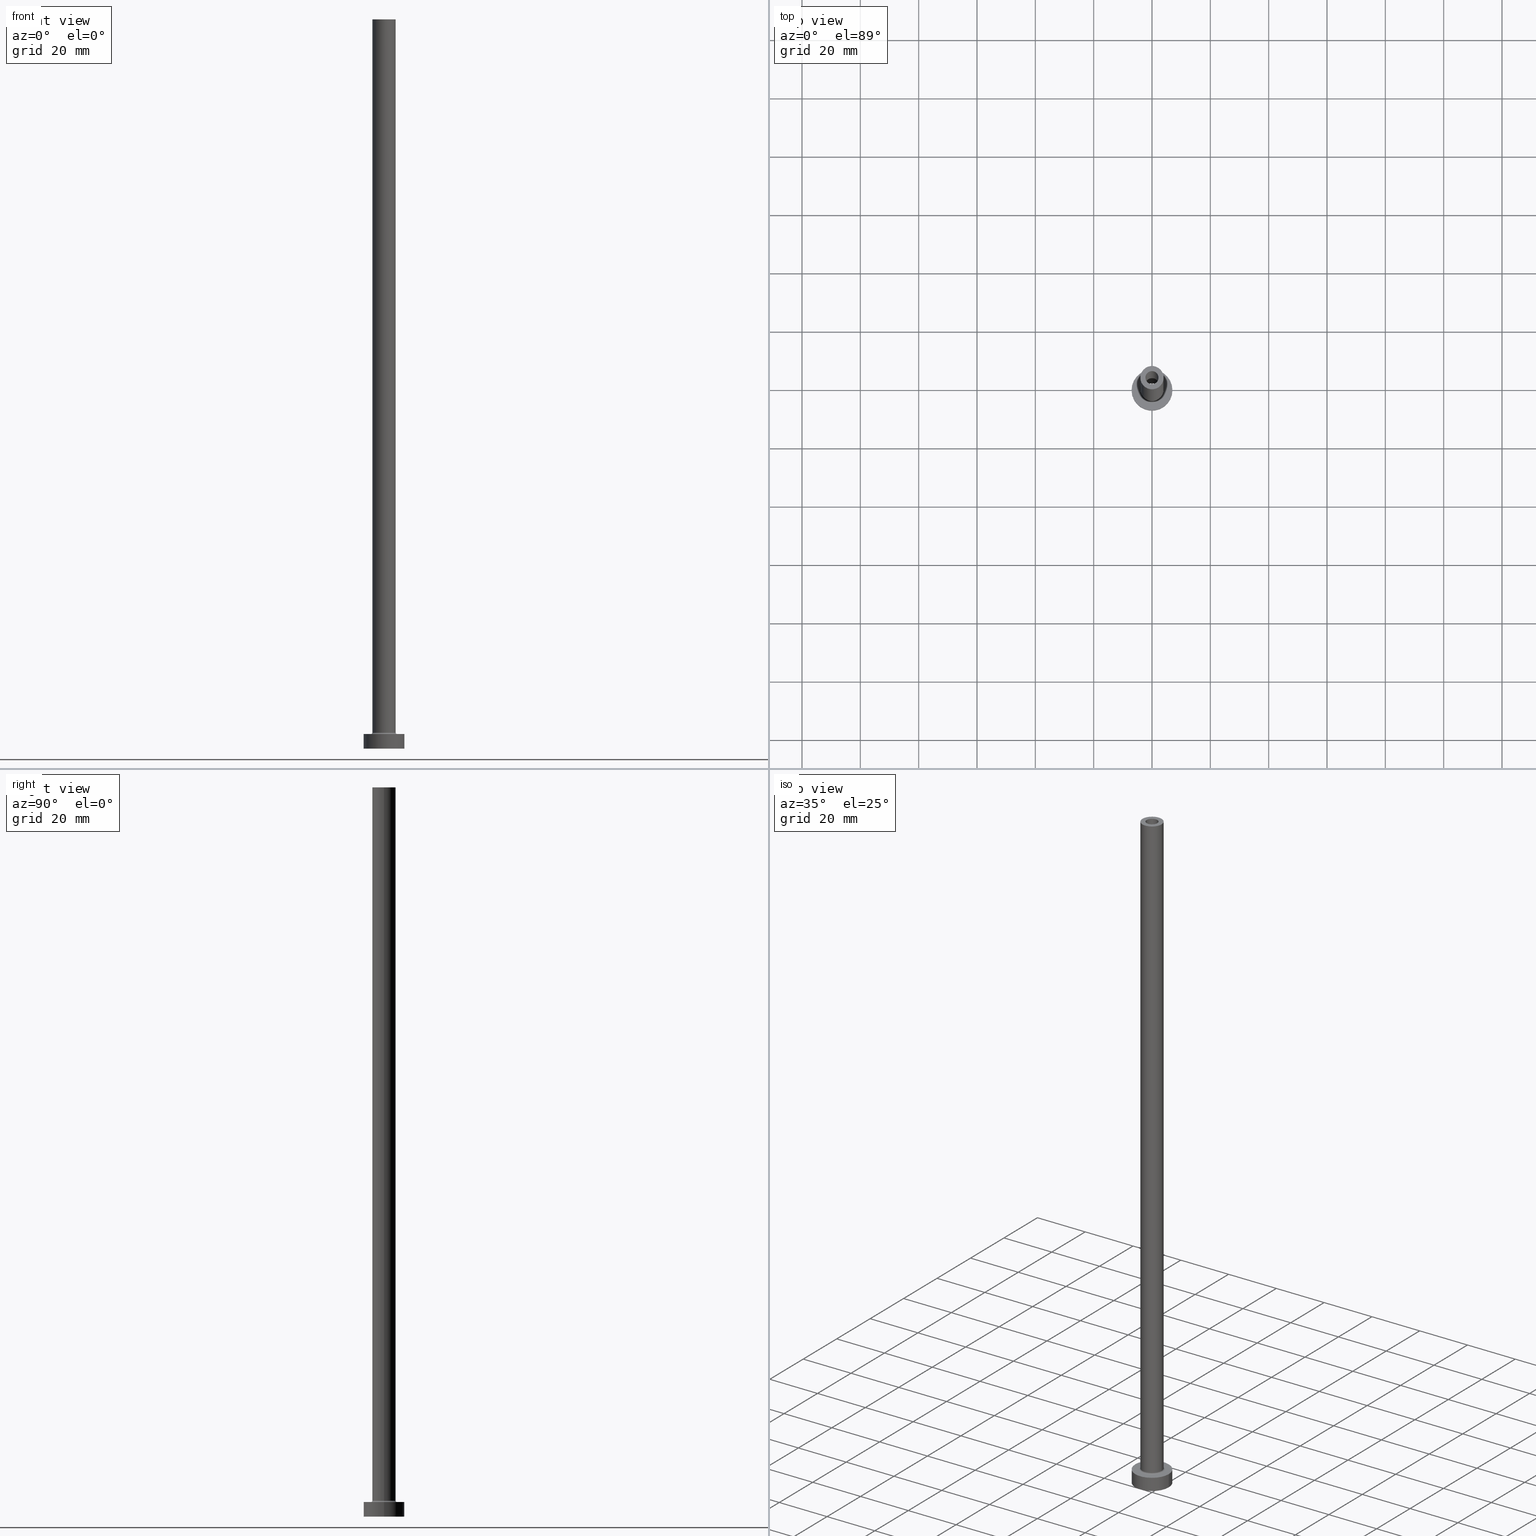
[diagram: canonical four-view strip — front | top / right | iso, engineering-drawing reading convention]
A machine part, canonical four-view strip (front | top / right | iso — engineering-drawing reading convention). The complete STEP part file that produces these views, byte-faithful:
ISO-10303-21;
HEADER;
FILE_DESCRIPTION (( 'STEP AP203' ),
    '1' );
FILE_NAME ('2b3d.STEP',
    '2023-02-13T11:04:28',
    ( '' ),
    ( '' ),
    'SwSTEP 2.0',
    'SolidWorks 2019',
    '' );
FILE_SCHEMA (( 'CONFIG_CONTROL_DESIGN' ));
ENDSEC;

DATA;
#1 = DIRECTION ( 'NONE',  ( 1.000000000000000000, 0.000000000000000000, -0.000000000000000000 ) ) ;
#2 = AXIS2_PLACEMENT_3D ( 'NONE', #378, #49, #346 ) ;
#3 = CARTESIAN_POINT ( 'NONE',  ( 0.000000000000000000, 0.000000000000000000, 250.0000000000000000 ) ) ;
#4 = ADVANCED_FACE ( 'NONE', ( #196, #313 ), #344, .F. ) ;
#5 = APPROVAL_STATUS ( 'not_yet_approved' ) ;
#6 = FACE_BOUND ( 'NONE', #110, .T. ) ;
#7 = ORIENTED_EDGE ( 'NONE', *, *, #81, .T. ) ;
#8 = DIRECTION ( 'NONE',  ( 1.000000000000000000, 0.000000000000000000, 0.000000000000000000 ) ) ;
#9 = AXIS2_PLACEMENT_3D ( 'NONE', #26, #382, #315 ) ;
#10 = CARTESIAN_POINT ( 'NONE',  ( -7.000000000000000000, 0.000000000000000000, 5.000000000000000000 ) ) ;
#11 = CARTESIAN_POINT ( 'NONE',  ( 0.000000000000000000, 0.000000000000000000, 250.0000000000000000 ) ) ;
#12 = DIRECTION ( 'NONE',  ( -1.000000000000000000, 0.000000000000000000, 0.000000000000000000 ) ) ;
#13 = AXIS2_PLACEMENT_3D ( 'NONE', #274, #55, #457 ) ;
#14 = DIRECTION ( 'NONE',  ( 1.000000000000000000, 0.000000000000000000, 0.000000000000000000 ) ) ;
#15 = CARTESIAN_POINT ( 'NONE',  ( 0.000000000000000000, 0.000000000000000000, 5.500000000000005329 ) ) ;
#16 = AXIS2_PLACEMENT_3D ( 'NONE', #191, #230, #340 ) ;
#17 = CARTESIAN_POINT ( 'NONE',  ( 0.000000000000000000, 0.000000000000000000, 0.000000000000000000 ) ) ;
#18 = ORIENTED_EDGE ( 'NONE', *, *, #396, .T. ) ;
#19 = EDGE_CURVE ( 'NONE', #76, #166, #244, .T. ) ;
#20 = DATE_AND_TIME ( #417, #94 ) ;
#21 = ORIENTED_EDGE ( 'NONE', *, *, #50, .F. ) ;
#22 = DIRECTION ( 'NONE',  ( 0.000000000000000000, 0.000000000000000000, -1.000000000000000000 ) ) ;
#23 = CARTESIAN_POINT ( 'NONE',  ( 0.000000000000000000, 0.000000000000000000, 205.0000000000000284 ) ) ;
#24 = CIRCLE ( 'NONE', #288, 4.500000000000000888 ) ;
#25 =( NAMED_UNIT ( * ) PLANE_ANGLE_UNIT ( ) SI_UNIT ( $, .RADIAN. ) );
#26 = CARTESIAN_POINT ( 'NONE',  ( 0.000000000000000000, 0.000000000000000000, 5.500000000000005329 ) ) ;
#27 = DATE_TIME_ROLE ( 'creation_date' ) ;
#28 = DIRECTION ( 'NONE',  ( -1.000000000000000000, 0.000000000000000000, 0.000000000000000000 ) ) ;
#29 = CIRCLE ( 'NONE', #219, 2.399999999999999911 ) ;
#30 = CARTESIAN_POINT ( 'NONE',  ( 0.000000000000000000, 0.000000000000000000, 5.000000000000000000 ) ) ;
#31 = CARTESIAN_POINT ( 'NONE',  ( -2.399999999999999911, 0.000000000000000000, 211.7882250993908713 ) ) ;
#32 = PERSON_AND_ORGANIZATION ( #57, #300 ) ;
#33 = CARTESIAN_POINT ( 'NONE',  ( -4.500000000000000888, 5.510910596163088569E-16, 5.000000000000002665 ) ) ;
#34 = AXIS2_PLACEMENT_3D ( 'NONE', #17, #165, #312 ) ;
#35 = DIRECTION ( 'NONE',  ( -0.000000000000000000, -0.000000000000000000, -1.000000000000000000 ) ) ;
#36 = FACE_OUTER_BOUND ( 'NONE', #175, .T. ) ;
#37 = AXIS2_PLACEMENT_3D ( 'NONE', #287, #364, #69 ) ;
#38 = ORIENTED_EDGE ( 'NONE', *, *, #361, .F. ) ;
#39 = CC_DESIGN_PERSON_AND_ORGANIZATION_ASSIGNMENT ( #32, #144, ( #148 ) ) ;
#40 = DIRECTION ( 'NONE',  ( 0.000000000000000000, 0.000000000000000000, 1.000000000000000000 ) ) ;
#41 = EDGE_LOOP ( 'NONE', ( #83, #78, #412, #188 ) ) ;
#42 = CIRCLE ( 'NONE', #2, 4.000000000000000000 ) ;
#43 = ADVANCED_FACE ( 'NONE', ( #268 ), #93, .F. ) ;
#44 = DIRECTION ( 'NONE',  ( 1.000000000000000000, 0.000000000000000000, 0.000000000000000000 ) ) ;
#45 = ORIENTED_EDGE ( 'NONE', *, *, #429, .T. ) ;
#46 = CARTESIAN_POINT ( 'NONE',  ( -2.399999999999999911, 0.000000000000000000, 205.0000000000000284 ) ) ;
#47 = ORIENTED_EDGE ( 'NONE', *, *, #337, .F. ) ;
#48 = EDGE_LOOP ( 'NONE', ( #222, #383 ) ) ;
#49 = DIRECTION ( 'NONE',  ( 0.000000000000000000, 0.000000000000000000, 1.000000000000000000 ) ) ;
#50 = EDGE_CURVE ( 'NONE', #124, #202, #387, .T. ) ;
#51 = ORIENTED_EDGE ( 'NONE', *, *, #235, .T. ) ;
#52 = CC_DESIGN_DATE_AND_TIME_ASSIGNMENT ( #254, #399, ( #249 ) ) ;
#53 = AXIS2_PLACEMENT_3D ( 'NONE', #80, #263, #440 ) ;
#54 = PERSON_AND_ORGANIZATION_ROLE ( 'design_owner' ) ;
#55 = DIRECTION ( 'NONE',  ( 0.000000000000000000, 0.000000000000000000, 1.000000000000000000 ) ) ;
#56 = ORIENTED_EDGE ( 'NONE', *, *, #81, .F. ) ;
#57 = PERSON ( 'NEUR�EN�', 'NEUR�EN�', 'NEUR�EN�', ('NEUR�EN�'), ('NEUR�EN�'), ('NEUR�EN�') ) ;
#58 = VECTOR ( 'NONE', #70, 1000.000000000000000 ) ;
#59 = DIRECTION ( 'NONE',  ( 0.000000000000000000, 0.000000000000000000, -1.000000000000000000 ) ) ;
#60 = CARTESIAN_POINT ( 'NONE',  ( 0.000000000000000000, 0.000000000000000000, 211.7882250993908713 ) ) ;
#61 = AXIS2_PLACEMENT_3D ( 'NONE', #453, #389, #392 ) ;
#62 = ADVANCED_FACE ( 'NONE', ( #377, #164 ), #198, .T. ) ;
#63 = VECTOR ( 'NONE', #35, 1000.000000000000000 ) ;
#64 = EDGE_LOOP ( 'NONE', ( #310, #51 ) ) ;
#65 = ADVANCED_FACE ( 'NONE', ( #461 ), #147, .F. ) ;
#66 = CIRCLE ( 'NONE', #171, 7.000000000000000000 ) ;
#67 = CARTESIAN_POINT ( 'NONE',  ( 2.399999999999999911, 2.939152317953647106E-16, 211.7882250993908713 ) ) ;
#68 = CIRCLE ( 'NONE', #281, 7.000000000000000000 ) ;
#69 = DIRECTION ( 'NONE',  ( 1.000000000000000000, 0.000000000000000000, 0.000000000000000000 ) ) ;
#70 = DIRECTION ( 'NONE',  ( -0.000000000000000000, -0.000000000000000000, -1.000000000000000000 ) ) ;
#71 = EDGE_CURVE ( 'NONE', #208, #124, #437, .T. ) ;
#72 = ORIENTED_EDGE ( 'NONE', *, *, #71, .T. ) ;
#73 = PERSON_AND_ORGANIZATION ( #57, #300 ) ;
#74 = CARTESIAN_POINT ( 'NONE',  ( 0.000000000000000000, 0.000000000000000000, 0.000000000000000000 ) ) ;
#75 = VERTEX_POINT ( 'NONE', #216 ) ;
#76 = VERTEX_POINT ( 'NONE', #107 ) ;
#77 = CARTESIAN_POINT ( 'NONE',  ( 4.500000000000000888, 0.000000000000000000, 5.000000000000002665 ) ) ;
#78 = ORIENTED_EDGE ( 'NONE', *, *, #211, .T. ) ;
#79 = CC_DESIGN_PERSON_AND_ORGANIZATION_ASSIGNMENT ( #183, #329, ( #148 ) ) ;
#80 = CARTESIAN_POINT ( 'NONE',  ( 0.000000000000000000, 0.000000000000000000, 205.0000000000000284 ) ) ;
#81 = EDGE_CURVE ( 'NONE', #96, #202, #146, .T. ) ;
#82 = DIRECTION ( 'NONE',  ( 1.000000000000000000, 0.000000000000000000, -0.000000000000000000 ) ) ;
#83 = ORIENTED_EDGE ( 'NONE', *, *, #405, .T. ) ;
#84 = AXIS2_PLACEMENT_3D ( 'NONE', #272, #373, #44 ) ;
#85 = DATE_AND_TIME ( #298, #330 ) ;
#86 = DIRECTION ( 'NONE',  ( 0.000000000000000000, 0.000000000000000000, 1.000000000000000000 ) ) ;
#87 = DIRECTION ( 'NONE',  ( 1.000000000000000000, 0.000000000000000000, 0.000000000000000000 ) ) ;
#88 = EDGE_LOOP ( 'NONE', ( #444, #193, #45, #257 ) ) ;
#89 = EDGE_CURVE ( 'NONE', #240, #132, #297, .T. ) ;
#90 = DIRECTION ( 'NONE',  ( 1.000000000000000000, 0.000000000000000000, 0.000000000000000000 ) ) ;
#91 = ORIENTED_EDGE ( 'NONE', *, *, #436, .F. ) ;
#92 =( NAMED_UNIT ( * ) SI_UNIT ( $, .STERADIAN. ) SOLID_ANGLE_UNIT ( ) );
#93 = CYLINDRICAL_SURFACE ( 'NONE', #203, 2.399999999999999911 ) ;
#94 = LOCAL_TIME ( 12, 4, 28.00000000000000000, #455 ) ;
#95 = PERSON_AND_ORGANIZATION ( #57, #300 ) ;
#96 = VERTEX_POINT ( 'NONE', #359 ) ;
#97 = FACE_OUTER_BOUND ( 'NONE', #401, .T. ) ;
#98 = MECHANICAL_CONTEXT ( 'NONE', #108, 'mechanical' ) ;
#99 = TOROIDAL_SURFACE ( 'NONE', #84, 4.500000000000000888, 0.5000000000000000000 ) ;
#100 = EDGE_CURVE ( 'NONE', #143, #75, #161, .T. ) ;
#101 = VERTEX_POINT ( 'NONE', #33 ) ;
#102 = DIRECTION ( 'NONE',  ( 1.000000000000000000, 0.000000000000000000, 0.000000000000000000 ) ) ;
#103 = DIRECTION ( 'NONE',  ( 0.000000000000000000, 0.000000000000000000, -1.000000000000000000 ) ) ;
#104 = CIRCLE ( 'NONE', #177, 4.000000000000000000 ) ;
#105 = CARTESIAN_POINT ( 'NONE',  ( -7.000000000000000000, 0.000000000000000000, 0.000000000000000000 ) ) ;
#106 = DATE_AND_TIME ( #176, #418 ) ;
#107 = CARTESIAN_POINT ( 'NONE',  ( 2.250000000000000000, 2.755455298081543792E-16, 250.0000000000000000 ) ) ;
#108 = APPLICATION_CONTEXT ( 'configuration controlled 3d designs of mechanical parts and assemblies' ) ;
#109 = ORIENTED_EDGE ( 'NONE', *, *, #155, .F. ) ;
#110 = EDGE_LOOP ( 'NONE', ( #308, #109 ) ) ;
#111 = FACE_OUTER_BOUND ( 'NONE', #414, .T. ) ;
#112 = AXIS2_PLACEMENT_3D ( 'NONE', #255, #220, #152 ) ;
#113 = CIRCLE ( 'NONE', #34, 7.000000000000000000 ) ;
#114 = COORDINATED_UNIVERSAL_TIME_OFFSET ( 1, 0, .AHEAD. ) ;
#115 = CARTESIAN_POINT ( 'NONE',  ( 0.000000000000000000, 0.000000000000000000, 5.500000000000005329 ) ) ;
#116 = ADVANCED_FACE ( 'NONE', ( #328 ), #252, .T. ) ;
#117 = ORIENTED_EDGE ( 'NONE', *, *, #368, .T. ) ;
#118 = LINE ( 'NONE', #306, #204 ) ;
#119 = AXIS2_PLACEMENT_3D ( 'NONE', #3, #400, #179 ) ;
#120 = EDGE_LOOP ( 'NONE', ( #278, #351 ) ) ;
#121 = APPROVAL_STATUS ( 'not_yet_approved' ) ;
#122 = DIRECTION ( 'NONE',  ( 0.000000000000000000, 0.000000000000000000, 1.000000000000000000 ) ) ;
#123 = CC_DESIGN_SECURITY_CLASSIFICATION ( #249, ( #148 ) ) ;
#124 = VERTEX_POINT ( 'NONE', #428 ) ;
#125 = CC_DESIGN_APPROVAL ( #438, ( #249 ) ) ;
#126 = CC_DESIGN_PERSON_AND_ORGANIZATION_ASSIGNMENT ( #95, #239, ( #456 ) ) ;
#127 = DIRECTION ( 'NONE',  ( -0.000000000000000000, -0.000000000000000000, -1.000000000000000000 ) ) ;
#128 = EDGE_LOOP ( 'NONE', ( #228, #7, #217, #348 ) ) ;
#129 = FACE_BOUND ( 'NONE', #64, .T. ) ;
#130 = VERTEX_POINT ( 'NONE', #105 ) ;
#131 = FACE_OUTER_BOUND ( 'NONE', #435, .T. ) ;
#132 = VERTEX_POINT ( 'NONE', #215 ) ;
#133 = VECTOR ( 'NONE', #212, 1000.000000000000000 ) ;
#134 = VECTOR ( 'NONE', #137, 1000.000000000000000 ) ;
#135 = APPLICATION_PROTOCOL_DEFINITION ( 'international standard', 'config_control_design', 1994, #138 ) ;
#136 = ADVANCED_FACE ( 'NONE', ( #6, #285 ), #250, .F. ) ;
#137 = DIRECTION ( 'NONE',  ( -0.000000000000000000, -0.000000000000000000, -1.000000000000000000 ) ) ;
#138 = APPLICATION_CONTEXT ( 'configuration controlled 3d designs of mechanical parts and assemblies' ) ;
#139 = EDGE_CURVE ( 'NONE', #76, #261, #397, .T. ) ;
#140 = CARTESIAN_POINT ( 'NONE',  ( 0.000000000000000000, 0.000000000000000000, 250.0000000000000000 ) ) ;
#141 = APPROVAL_PERSON_ORGANIZATION ( #197, #376, #318 ) ;
#142 = CC_DESIGN_PERSON_AND_ORGANIZATION_ASSIGNMENT ( #289, #251, ( #249 ) ) ;
#143 = VERTEX_POINT ( 'NONE', #291 ) ;
#144 = PERSON_AND_ORGANIZATION_ROLE ( 'design_supplier' ) ;
#145 = DIRECTION ( 'NONE',  ( 0.000000000000000000, 0.000000000000000000, 1.000000000000000000 ) ) ;
#146 = LINE ( 'NONE', #334, #63 ) ;
#147 = CYLINDRICAL_SURFACE ( 'NONE', #335, 2.250000000000000000 ) ;
#148 = PRODUCT_DEFINITION_FORMATION_WITH_SPECIFIED_SOURCE ( 'LIBOVOLN�', '', #207, .NOT_KNOWN. ) ;
#149 = EDGE_LOOP ( 'NONE', ( #365, #420 ) ) ;
#150 = CARTESIAN_POINT ( 'NONE',  ( 0.000000000000000000, 0.000000000000000000, 0.000000000000000000 ) ) ;
#151 = PRODUCT_RELATED_PRODUCT_CATEGORY ( 'detail', '', ( #207 ) ) ;
#152 = DIRECTION ( 'NONE',  ( 0.000000000000000000, 0.000000000000000000, -1.000000000000000000 ) ) ;
#153 = AXIS2_PLACEMENT_3D ( 'NONE', #15, #162, #87 ) ;
#154 = ORIENTED_EDGE ( 'NONE', *, *, #139, .F. ) ;
#155 = EDGE_CURVE ( 'NONE', #234, #132, #236, .T. ) ;
#156 = CARTESIAN_POINT ( 'NONE',  ( 2.399999999999999911, 2.939152317953647106E-16, 0.000000000000000000 ) ) ;
#157 = CC_DESIGN_APPROVAL ( #376, ( #456 ) ) ;
#158 = DIRECTION ( 'NONE',  ( -0.000000000000000000, -0.000000000000000000, -1.000000000000000000 ) ) ;
#159 = ORIENTED_EDGE ( 'NONE', *, *, #213, .T. ) ;
#160 = DIRECTION ( 'NONE',  ( 0.000000000000000000, 0.000000000000000000, 1.000000000000000000 ) ) ;
#161 = CIRCLE ( 'NONE', #37, 7.000000000000000000 ) ;
#162 = DIRECTION ( 'NONE',  ( 0.000000000000000000, 0.000000000000000000, 1.000000000000000000 ) ) ;
#163 = CARTESIAN_POINT ( 'NONE',  ( -4.500000000000000888, 5.510910596163089556E-16, 5.500000000000005329 ) ) ;
#164 = FACE_OUTER_BOUND ( 'NONE', #270, .T. ) ;
#165 = DIRECTION ( 'NONE',  ( 0.000000000000000000, 0.000000000000000000, 1.000000000000000000 ) ) ;
#166 = VERTEX_POINT ( 'NONE', #434 ) ;
#167 = CYLINDRICAL_SURFACE ( 'NONE', #354, 2.250000000000000000 ) ;
#168 = VERTEX_POINT ( 'NONE', #77 ) ;
#169 = EDGE_CURVE ( 'NONE', #202, #168, #320, .T. ) ;
#170 = DIRECTION ( 'NONE',  ( -1.000000000000000000, 0.000000000000000000, 0.000000000000000000 ) ) ;
#171 = AXIS2_PLACEMENT_3D ( 'NONE', #459, #145, #102 ) ;
#172 = AXIS2_PLACEMENT_3D ( 'NONE', #11, #86, #90 ) ;
#173 = DIRECTION ( 'NONE',  ( 1.000000000000000000, 0.000000000000000000, 0.000000000000000000 ) ) ;
#174 = ADVANCED_FACE ( 'NONE', ( #111 ), #260, .T. ) ;
#175 = EDGE_LOOP ( 'NONE', ( #21, #117, #406, #441 ) ) ;
#176 = CALENDAR_DATE ( 2023, 13, 2 ) ;
#177 = AXIS2_PLACEMENT_3D ( 'NONE', #443, #269, #189 ) ;
#178 = DIRECTION ( 'NONE',  ( -0.000000000000000000, -0.000000000000000000, -1.000000000000000000 ) ) ;
#179 = DIRECTION ( 'NONE',  ( -1.000000000000000000, 0.000000000000000000, 0.000000000000000000 ) ) ;
#180 = MANIFOLD_SOLID_BREP ( 'Odebrat vysunut�m4', #356 ) ;
#181 = DIRECTION ( 'NONE',  ( 0.000000000000000000, 0.000000000000000000, -1.000000000000000000 ) ) ;
#182 = DIRECTION ( 'NONE',  ( -0.000000000000000000, -0.000000000000000000, -1.000000000000000000 ) ) ;
#183 = PERSON_AND_ORGANIZATION ( #57, #300 ) ;
#184 = CARTESIAN_POINT ( 'NONE',  ( 2.250000000000000000, 2.755455298081543792E-16, 250.0000000000000000 ) ) ;
#185 = EDGE_CURVE ( 'NONE', #168, #101, #299, .T. ) ;
#186 = FACE_OUTER_BOUND ( 'NONE', #149, .T. ) ;
#187 = VECTOR ( 'NONE', #103, 1000.000000000000000 ) ;
#188 = ORIENTED_EDGE ( 'NONE', *, *, #89, .F. ) ;
#189 = DIRECTION ( 'NONE',  ( 1.000000000000000000, 0.000000000000000000, 0.000000000000000000 ) ) ;
#190 = CIRCLE ( 'NONE', #321, 4.000000000000000000 ) ;
#191 = CARTESIAN_POINT ( 'NONE',  ( 0.000000000000000000, 0.000000000000000000, 5.000000000000000000 ) ) ;
#192 = CARTESIAN_POINT ( 'NONE',  ( 0.000000000000000000, 0.000000000000000000, 205.0000000000000284 ) ) ;
#193 = ORIENTED_EDGE ( 'NONE', *, *, #436, .T. ) ;
#194 = CARTESIAN_POINT ( 'NONE',  ( -2.250000000000000000, 0.000000000000000000, 205.0000000000000284 ) ) ;
#195 = AXIS2_PLACEMENT_3D ( 'NONE', #74, #182, #294 ) ;
#196 = FACE_BOUND ( 'NONE', #120, .T. ) ;
#197 = PERSON_AND_ORGANIZATION ( #57, #300 ) ;
#198 = PLANE ( 'NONE',  #264 ) ;
#199 = EDGE_CURVE ( 'NONE', #75, #143, #66, .T. ) ;
#200 = ORIENTED_EDGE ( 'NONE', *, *, #352, .T. ) ;
#201 = APPROVAL_STATUS ( 'not_yet_approved' ) ;
#202 = VERTEX_POINT ( 'NONE', #325 ) ;
#203 = AXIS2_PLACEMENT_3D ( 'NONE', #425, #283, #12 ) ;
#204 = VECTOR ( 'NONE', #339, 1000.000000000000000 ) ;
#205 = APPROVAL_PERSON_ORGANIZATION ( #73, #438, #366 ) ;
#206 = DIRECTION ( 'NONE',  ( -1.000000000000000000, 0.000000000000000000, 0.000000000000000000 ) ) ;
#207 = PRODUCT ( '2b3d', '2b3d', '', ( #98 ) ) ;
#208 = VERTEX_POINT ( 'NONE', #246 ) ;
#209 = ADVANCED_BREP_SHAPE_REPRESENTATION ( '2b3d', ( #180, #431 ), #290 ) ;
#210 = AXIS2_PLACEMENT_3D ( 'NONE', #404, #357, #28 ) ;
#211 = EDGE_CURVE ( 'NONE', #439, #234, #394, .T. ) ;
#212 = DIRECTION ( 'NONE',  ( 0.000000000000000000, 0.000000000000000000, -1.000000000000000000 ) ) ;
#213 = EDGE_CURVE ( 'NONE', #75, #130, #262, .T. ) ;
#214 = COORDINATED_UNIVERSAL_TIME_OFFSET ( 1, 0, .AHEAD. ) ;
#215 = CARTESIAN_POINT ( 'NONE',  ( -2.399999999999999911, 0.000000000000000000, 0.000000000000000000 ) ) ;
#216 = CARTESIAN_POINT ( 'NONE',  ( -7.000000000000000000, 0.000000000000000000, 5.000000000000000000 ) ) ;
#217 = ORIENTED_EDGE ( 'NONE', *, *, #311, .T. ) ;
#218 = CALENDAR_DATE ( 2023, 13, 2 ) ;
#219 = AXIS2_PLACEMENT_3D ( 'NONE', #266, #411, #408 ) ;
#220 = DIRECTION ( 'NONE',  ( 0.000000000000000000, -1.000000000000000000, 0.000000000000000000 ) ) ;
#221 = EDGE_CURVE ( 'NONE', #166, #374, #118, .T. ) ;
#222 = ORIENTED_EDGE ( 'NONE', *, *, #405, .F. ) ;
#223 = DIRECTION ( 'NONE',  ( 1.000000000000000000, 0.000000000000000000, 0.000000000000000000 ) ) ;
#224 = EDGE_LOOP ( 'NONE', ( #154, #238, #385, #38 ) ) ;
#225 = DIRECTION ( 'NONE',  ( 1.000000000000000000, 0.000000000000000000, 0.000000000000000000 ) ) ;
#226 = CARTESIAN_POINT ( 'NONE',  ( 0.000000000000000000, 0.000000000000000000, 5.000000000000000000 ) ) ;
#227 = AXIS2_PLACEMENT_3D ( 'NONE', #163, #309, #233 ) ;
#228 = ORIENTED_EDGE ( 'NONE', *, *, #384, .F. ) ;
#229 = SHAPE_DEFINITION_REPRESENTATION ( #273, #209 ) ;
#230 = DIRECTION ( 'NONE',  ( -0.000000000000000000, -0.000000000000000000, -1.000000000000000000 ) ) ;
#231 = ORIENTED_EDGE ( 'NONE', *, *, #247, .F. ) ;
#232 = APPROVAL_DATE_TIME ( #85, #438 ) ;
#233 = DIRECTION ( 'NONE',  ( -1.000000000000000000, 1.224646799147351482E-16, 0.000000000000000000 ) ) ;
#234 = VERTEX_POINT ( 'NONE', #156 ) ;
#235 = EDGE_CURVE ( 'NONE', #101, #168, #24, .T. ) ;
#236 = CIRCLE ( 'NONE', #195, 2.399999999999999911 ) ;
#237 = CIRCLE ( 'NONE', #227, 0.5000000000000004441 ) ;
#238 = ORIENTED_EDGE ( 'NONE', *, *, #19, .T. ) ;
#239 = PERSON_AND_ORGANIZATION_ROLE ( 'creator' ) ;
#240 = VERTEX_POINT ( 'NONE', #46 ) ;
#241 = CYLINDRICAL_SURFACE ( 'NONE', #61, 7.000000000000000000 ) ;
#242 = CARTESIAN_POINT ( 'NONE',  ( 2.399999999999999911, 2.939152317953647106E-16, 205.0000000000000284 ) ) ;
#243 = ORIENTED_EDGE ( 'NONE', *, *, #19, .F. ) ;
#244 = CIRCLE ( 'NONE', #13, 2.250000000000000000 ) ;
#245 = UNCERTAINTY_MEASURE_WITH_UNIT (LENGTH_MEASURE( 1.000000000000000082E-05 ), #386, 'distance_accuracy_value', 'NONE');
#246 = CARTESIAN_POINT ( 'NONE',  ( -4.000000000000000000, 0.000000000000000000, 250.0000000000000000 ) ) ;
#247 = EDGE_CURVE ( 'NONE', #208, #96, #104, .T. ) ;
#248 = SECURITY_CLASSIFICATION_LEVEL ( 'unclassified' ) ;
#249 = SECURITY_CLASSIFICATION ( '', '', #248 ) ;
#250 = PLANE ( 'NONE',  #326 ) ;
#251 = PERSON_AND_ORGANIZATION_ROLE ( 'classification_officer' ) ;
#252 = CYLINDRICAL_SURFACE ( 'NONE', #119, 4.000000000000000000 ) ;
#253 = ORIENTED_EDGE ( 'NONE', *, *, #50, .T. ) ;
#254 = DATE_AND_TIME ( #433, #410 ) ;
#255 = CARTESIAN_POINT ( 'NONE',  ( 4.500000000000000888, 0.000000000000000000, 5.500000000000005329 ) ) ;
#256 = APPROVAL ( #5, 'NEUR�EN�' ) ;
#257 = ORIENTED_EDGE ( 'NONE', *, *, #213, .F. ) ;
#258 = ORIENTED_EDGE ( 'NONE', *, *, #352, .F. ) ;
#259 = AXIS2_PLACEMENT_3D ( 'NONE', #370, #342, #8 ) ;
#260 = CYLINDRICAL_SURFACE ( 'NONE', #210, 4.000000000000000000 ) ;
#261 = VERTEX_POINT ( 'NONE', #375 ) ;
#262 = LINE ( 'NONE', #10, #430 ) ;
#263 = DIRECTION ( 'NONE',  ( 0.000000000000000000, 0.000000000000000000, 1.000000000000000000 ) ) ;
#264 = AXIS2_PLACEMENT_3D ( 'NONE', #447, #314, #432 ) ;
#265 = ORIENTED_EDGE ( 'NONE', *, *, #139, .T. ) ;
#266 = CARTESIAN_POINT ( 'NONE',  ( 0.000000000000000000, 0.000000000000000000, 0.000000000000000000 ) ) ;
#267 = AXIS2_PLACEMENT_3D ( 'NONE', #60, #59, #206 ) ;
#268 = FACE_OUTER_BOUND ( 'NONE', #317, .T. ) ;
#269 = DIRECTION ( 'NONE',  ( 0.000000000000000000, 0.000000000000000000, 1.000000000000000000 ) ) ;
#270 = EDGE_LOOP ( 'NONE', ( #381, #349 ) ) ;
#271 = EDGE_CURVE ( 'NONE', #439, #240, #402, .T. ) ;
#272 = CARTESIAN_POINT ( 'NONE',  ( 0.000000000000000000, 0.000000000000000000, 5.500000000000005329 ) ) ;
#273 = PRODUCT_DEFINITION_SHAPE ( 'NONE', 'NONE',  #456 ) ;
#274 = CARTESIAN_POINT ( 'NONE',  ( 0.000000000000000000, 0.000000000000000000, 250.0000000000000000 ) ) ;
#275 = CARTESIAN_POINT ( 'NONE',  ( 0.000000000000000000, 0.000000000000000000, 0.000000000000000000 ) ) ;
#276 = AXIS2_PLACEMENT_3D ( 'NONE', #30, #178, #323 ) ;
#277 = TOROIDAL_SURFACE ( 'NONE', #9, 4.500000000000000888, 0.5000000000000000000 ) ;
#278 = ORIENTED_EDGE ( 'NONE', *, *, #337, .T. ) ;
#279 = LINE ( 'NONE', #353, #134 ) ;
#280 = DIRECTION ( 'NONE',  ( 1.000000000000000000, 0.000000000000000000, 0.000000000000000000 ) ) ;
#281 = AXIS2_PLACEMENT_3D ( 'NONE', #282, #421, #173 ) ;
#282 = CARTESIAN_POINT ( 'NONE',  ( 0.000000000000000000, 0.000000000000000000, 0.000000000000000000 ) ) ;
#283 = DIRECTION ( 'NONE',  ( 0.000000000000000000, 0.000000000000000000, -1.000000000000000000 ) ) ;
#284 = ADVANCED_FACE ( 'NONE', ( #129, #186 ), #413, .T. ) ;
#285 = FACE_OUTER_BOUND ( 'NONE', #369, .T. ) ;
#286 = DESIGN_CONTEXT ( 'detailed design', #138, 'design' ) ;
#287 = CARTESIAN_POINT ( 'NONE',  ( 0.000000000000000000, 0.000000000000000000, 5.000000000000000000 ) ) ;
#288 = AXIS2_PLACEMENT_3D ( 'NONE', #226, #158, #367 ) ;
#289 = PERSON_AND_ORGANIZATION ( #57, #300 ) ;
#290 =( GEOMETRIC_REPRESENTATION_CONTEXT ( 3 ) GLOBAL_UNCERTAINTY_ASSIGNED_CONTEXT ( ( #245 ) ) GLOBAL_UNIT_ASSIGNED_CONTEXT ( ( #386, #25, #92 ) ) REPRESENTATION_CONTEXT ( 'NONE', 'WORKASPACE' ) );
#291 = CARTESIAN_POINT ( 'NONE',  ( 7.000000000000000000, 8.572527594031473190E-16, 5.000000000000000000 ) ) ;
#292 = ORIENTED_EDGE ( 'NONE', *, *, #169, .T. ) ;
#293 = COORDINATED_UNIVERSAL_TIME_OFFSET ( 1, 0, .AHEAD. ) ;
#294 = DIRECTION ( 'NONE',  ( 1.000000000000000000, 0.000000000000000000, 0.000000000000000000 ) ) ;
#295 = ORIENTED_EDGE ( 'NONE', *, *, #311, .F. ) ;
#296 = ORIENTED_EDGE ( 'NONE', *, *, #221, .F. ) ;
#297 = LINE ( 'NONE', #31, #187 ) ;
#298 = CALENDAR_DATE ( 2023, 13, 2 ) ;
#299 = CIRCLE ( 'NONE', #276, 4.500000000000000888 ) ;
#300 = ORGANIZATION ( 'NEUR�EN�', 'NEUR�EN�', '' ) ;
#301 = FACE_OUTER_BOUND ( 'NONE', #371, .T. ) ;
#302 = EDGE_CURVE ( 'NONE', #132, #234, #29, .T. ) ;
#303 = CARTESIAN_POINT ( 'NONE',  ( 0.000000000000000000, 0.000000000000000000, 5.000000000000000000 ) ) ;
#304 = ADVANCED_FACE ( 'NONE', ( #301 ), #99, .F. ) ;
#305 = ORIENTED_EDGE ( 'NONE', *, *, #429, .F. ) ;
#306 = CARTESIAN_POINT ( 'NONE',  ( -2.250000000000000000, 0.000000000000000000, 250.0000000000000000 ) ) ;
#307 = AXIS2_PLACEMENT_3D ( 'NONE', #23, #319, #449 ) ;
#308 = ORIENTED_EDGE ( 'NONE', *, *, #302, .F. ) ;
#309 = DIRECTION ( 'NONE',  ( 1.224646799147353207E-16, 1.000000000000000000, -0.000000000000000000 ) ) ;
#310 = ORIENTED_EDGE ( 'NONE', *, *, #185, .T. ) ;
#311 = EDGE_CURVE ( 'NONE', #202, #124, #190, .T. ) ;
#312 = DIRECTION ( 'NONE',  ( 1.000000000000000000, 0.000000000000000000, 0.000000000000000000 ) ) ;
#313 = FACE_OUTER_BOUND ( 'NONE', #48, .T. ) ;
#314 = DIRECTION ( 'NONE',  ( 0.000000000000000000, 0.000000000000000000, 1.000000000000000000 ) ) ;
#315 = DIRECTION ( 'NONE',  ( 1.000000000000000000, 0.000000000000000000, 0.000000000000000000 ) ) ;
#316 = LOCAL_TIME ( 12, 4, 28.00000000000000000, #333 ) ;
#317 = EDGE_LOOP ( 'NONE', ( #393, #416, #332, #363 ) ) ;
#318 = APPROVAL_ROLE ( '' ) ;
#319 = DIRECTION ( 'NONE',  ( 0.000000000000000000, 0.000000000000000000, 1.000000000000000000 ) ) ;
#320 = CIRCLE ( 'NONE', #112, 0.5000000000000004441 ) ;
#321 = AXIS2_PLACEMENT_3D ( 'NONE', #115, #40, #225 ) ;
#322 = ADVANCED_FACE ( 'NONE', ( #407 ), #336, .T. ) ;
#323 = DIRECTION ( 'NONE',  ( 1.000000000000000000, 0.000000000000000000, 0.000000000000000000 ) ) ;
#324 = PERSON_AND_ORGANIZATION ( #57, #300 ) ;
#325 = CARTESIAN_POINT ( 'NONE',  ( 4.000000000000000000, 4.898587196589412829E-16, 5.500000000000005329 ) ) ;
#326 = AXIS2_PLACEMENT_3D ( 'NONE', #150, #331, #1 ) ;
#327 = DATE_AND_TIME ( #218, #316 ) ;
#328 = FACE_OUTER_BOUND ( 'NONE', #128, .T. ) ;
#329 = PERSON_AND_ORGANIZATION_ROLE ( 'creator' ) ;
#330 = LOCAL_TIME ( 12, 4, 28.00000000000000000, #114 ) ;
#331 = DIRECTION ( 'NONE',  ( 0.000000000000000000, 0.000000000000000000, 1.000000000000000000 ) ) ;
#332 = ORIENTED_EDGE ( 'NONE', *, *, #89, .T. ) ;
#333 = COORDINATED_UNIVERSAL_TIME_OFFSET ( 1, 0, .AHEAD. ) ;
#334 = CARTESIAN_POINT ( 'NONE',  ( 4.000000000000000000, 4.898587196589412829E-16, 250.0000000000000000 ) ) ;
#335 = AXIS2_PLACEMENT_3D ( 'NONE', #362, #181, #398 ) ;
#336 = CYLINDRICAL_SURFACE ( 'NONE', #16, 7.000000000000000000 ) ;
#337 = EDGE_CURVE ( 'NONE', #374, #261, #390, .T. ) ;
#338 = AXIS2_PLACEMENT_3D ( 'NONE', #448, #415, #223 ) ;
#339 = DIRECTION ( 'NONE',  ( 0.000000000000000000, 0.000000000000000000, -1.000000000000000000 ) ) ;
#340 = DIRECTION ( 'NONE',  ( -1.000000000000000000, 0.000000000000000000, 0.000000000000000000 ) ) ;
#341 = VERTEX_POINT ( 'NONE', #446 ) ;
#342 = DIRECTION ( 'NONE',  ( 0.000000000000000000, 0.000000000000000000, 1.000000000000000000 ) ) ;
#343 = VECTOR ( 'NONE', #426, 1000.000000000000000 ) ;
#344 = PLANE ( 'NONE',  #307 ) ;
#345 = CC_DESIGN_DATE_AND_TIME_ASSIGNMENT ( #327, #27, ( #456 ) ) ;
#346 = DIRECTION ( 'NONE',  ( 1.000000000000000000, 0.000000000000000000, 0.000000000000000000 ) ) ;
#347 = CIRCLE ( 'NONE', #338, 2.399999999999999911 ) ;
#348 = ORIENTED_EDGE ( 'NONE', *, *, #71, .F. ) ;
#349 = ORIENTED_EDGE ( 'NONE', *, *, #384, .T. ) ;
#350 = DIRECTION ( 'NONE',  ( 0.000000000000000000, 0.000000000000000000, 1.000000000000000000 ) ) ;
#351 = ORIENTED_EDGE ( 'NONE', *, *, #361, .T. ) ;
#352 = EDGE_CURVE ( 'NONE', #166, #76, #391, .T. ) ;
#353 = CARTESIAN_POINT ( 'NONE',  ( 7.000000000000000000, 8.572527594031473190E-16, 5.000000000000000000 ) ) ;
#354 = AXIS2_PLACEMENT_3D ( 'NONE', #140, #22, #170 ) ;
#355 = CYLINDRICAL_SURFACE ( 'NONE', #267, 2.399999999999999911 ) ;
#356 = CLOSED_SHELL ( 'NONE', ( #442, #450, #419, #116, #322, #460, #284, #136, #174, #62, #304, #43, #4, #65 ) ) ;
#357 = DIRECTION ( 'NONE',  ( -0.000000000000000000, -0.000000000000000000, -1.000000000000000000 ) ) ;
#358 = CIRCLE ( 'NONE', #395, 2.250000000000000000 ) ;
#359 = CARTESIAN_POINT ( 'NONE',  ( 4.000000000000000000, 4.898587196589412829E-16, 250.0000000000000000 ) ) ;
#360 = CARTESIAN_POINT ( 'NONE',  ( -4.000000000000000000, 0.000000000000000000, 250.0000000000000000 ) ) ;
#361 = EDGE_CURVE ( 'NONE', #261, #374, #358, .T. ) ;
#362 = CARTESIAN_POINT ( 'NONE',  ( 0.000000000000000000, 0.000000000000000000, 250.0000000000000000 ) ) ;
#363 = ORIENTED_EDGE ( 'NONE', *, *, #302, .T. ) ;
#364 = DIRECTION ( 'NONE',  ( 0.000000000000000000, 0.000000000000000000, 1.000000000000000000 ) ) ;
#365 = ORIENTED_EDGE ( 'NONE', *, *, #199, .T. ) ;
#366 = APPROVAL_ROLE ( '' ) ;
#367 = DIRECTION ( 'NONE',  ( 1.000000000000000000, 0.000000000000000000, 0.000000000000000000 ) ) ;
#368 = EDGE_CURVE ( 'NONE', #124, #101, #237, .T. ) ;
#369 = EDGE_LOOP ( 'NONE', ( #409, #305 ) ) ;
#370 = CARTESIAN_POINT ( 'NONE',  ( 0.000000000000000000, 0.000000000000000000, 205.0000000000000284 ) ) ;
#371 = EDGE_LOOP ( 'NONE', ( #388, #295, #292, #403 ) ) ;
#372 = AXIS2_PLACEMENT_3D ( 'NONE', #303, #122, #82 ) ;
#373 = DIRECTION ( 'NONE',  ( 0.000000000000000000, 0.000000000000000000, 1.000000000000000000 ) ) ;
#374 = VERTEX_POINT ( 'NONE', #194 ) ;
#375 = CARTESIAN_POINT ( 'NONE',  ( 2.250000000000000000, 2.755455298081543792E-16, 205.0000000000000284 ) ) ;
#376 = APPROVAL ( #201, 'NEUR�EN�' ) ;
#377 = FACE_BOUND ( 'NONE', #452, .T. ) ;
#378 = CARTESIAN_POINT ( 'NONE',  ( 0.000000000000000000, 0.000000000000000000, 250.0000000000000000 ) ) ;
#379 = ORIENTED_EDGE ( 'NONE', *, *, #199, .F. ) ;
#380 = PERSON_AND_ORGANIZATION ( #57, #300 ) ;
#381 = ORIENTED_EDGE ( 'NONE', *, *, #247, .T. ) ;
#382 = DIRECTION ( 'NONE',  ( 0.000000000000000000, 0.000000000000000000, 1.000000000000000000 ) ) ;
#383 = ORIENTED_EDGE ( 'NONE', *, *, #271, .F. ) ;
#384 = EDGE_CURVE ( 'NONE', #96, #208, #42, .T. ) ;
#385 = ORIENTED_EDGE ( 'NONE', *, *, #221, .T. ) ;
#386 =( LENGTH_UNIT ( ) NAMED_UNIT ( * ) SI_UNIT ( .MILLI., .METRE. ) );
#387 = CIRCLE ( 'NONE', #153, 4.000000000000000000 ) ;
#388 = ORIENTED_EDGE ( 'NONE', *, *, #368, .F. ) ;
#389 = DIRECTION ( 'NONE',  ( -0.000000000000000000, -0.000000000000000000, -1.000000000000000000 ) ) ;
#390 = CIRCLE ( 'NONE', #259, 2.250000000000000000 ) ;
#391 = CIRCLE ( 'NONE', #172, 2.250000000000000000 ) ;
#392 = DIRECTION ( 'NONE',  ( -1.000000000000000000, 0.000000000000000000, 0.000000000000000000 ) ) ;
#393 = ORIENTED_EDGE ( 'NONE', *, *, #211, .F. ) ;
#394 = LINE ( 'NONE', #67, #133 ) ;
#395 = AXIS2_PLACEMENT_3D ( 'NONE', #192, #160, #14 ) ;
#396 = EDGE_CURVE ( 'NONE', #130, #341, #113, .T. ) ;
#397 = LINE ( 'NONE', #184, #343 ) ;
#398 = DIRECTION ( 'NONE',  ( -1.000000000000000000, 0.000000000000000000, 0.000000000000000000 ) ) ;
#399 = DATE_TIME_ROLE ( 'classification_date' ) ;
#400 = DIRECTION ( 'NONE',  ( -0.000000000000000000, -0.000000000000000000, -1.000000000000000000 ) ) ;
#401 = EDGE_LOOP ( 'NONE', ( #200, #265, #47, #296 ) ) ;
#402 = CIRCLE ( 'NONE', #53, 2.399999999999999911 ) ;
#403 = ORIENTED_EDGE ( 'NONE', *, *, #235, .F. ) ;
#404 = CARTESIAN_POINT ( 'NONE',  ( 0.000000000000000000, 0.000000000000000000, 250.0000000000000000 ) ) ;
#405 = EDGE_CURVE ( 'NONE', #240, #439, #347, .T. ) ;
#406 = ORIENTED_EDGE ( 'NONE', *, *, #185, .F. ) ;
#407 = FACE_OUTER_BOUND ( 'NONE', #88, .T. ) ;
#408 = DIRECTION ( 'NONE',  ( 1.000000000000000000, 0.000000000000000000, 0.000000000000000000 ) ) ;
#409 = ORIENTED_EDGE ( 'NONE', *, *, #396, .F. ) ;
#410 = LOCAL_TIME ( 12, 4, 28.00000000000000000, #293 ) ;
#411 = DIRECTION ( 'NONE',  ( -0.000000000000000000, -0.000000000000000000, -1.000000000000000000 ) ) ;
#412 = ORIENTED_EDGE ( 'NONE', *, *, #155, .T. ) ;
#413 = PLANE ( 'NONE',  #372 ) ;
#414 = EDGE_LOOP ( 'NONE', ( #56, #231, #72, #253 ) ) ;
#415 = DIRECTION ( 'NONE',  ( 0.000000000000000000, 0.000000000000000000, 1.000000000000000000 ) ) ;
#416 = ORIENTED_EDGE ( 'NONE', *, *, #271, .T. ) ;
#417 = CALENDAR_DATE ( 2023, 13, 2 ) ;
#418 = LOCAL_TIME ( 12, 4, 28.00000000000000000, #214 ) ;
#419 = ADVANCED_FACE ( 'NONE', ( #36 ), #277, .F. ) ;
#420 = ORIENTED_EDGE ( 'NONE', *, *, #100, .T. ) ;
#421 = DIRECTION ( 'NONE',  ( 0.000000000000000000, 0.000000000000000000, 1.000000000000000000 ) ) ;
#422 = FACE_OUTER_BOUND ( 'NONE', #41, .T. ) ;
#423 = APPLICATION_PROTOCOL_DEFINITION ( 'international standard', 'config_control_design', 1994, #108 ) ;
#424 = CC_DESIGN_PERSON_AND_ORGANIZATION_ASSIGNMENT ( #380, #54, ( #207 ) ) ;
#425 = CARTESIAN_POINT ( 'NONE',  ( 0.000000000000000000, 0.000000000000000000, 211.7882250993908713 ) ) ;
#426 = DIRECTION ( 'NONE',  ( 0.000000000000000000, 0.000000000000000000, -1.000000000000000000 ) ) ;
#427 = APPROVAL_ROLE ( '' ) ;
#428 = CARTESIAN_POINT ( 'NONE',  ( -4.000000000000000000, 0.000000000000000000, 5.500000000000005329 ) ) ;
#429 = EDGE_CURVE ( 'NONE', #341, #130, #68, .T. ) ;
#430 = VECTOR ( 'NONE', #127, 1000.000000000000000 ) ;
#431 = AXIS2_PLACEMENT_3D ( 'NONE', #275, #350, #280 ) ;
#432 = DIRECTION ( 'NONE',  ( 1.000000000000000000, 0.000000000000000000, -0.000000000000000000 ) ) ;
#433 = CALENDAR_DATE ( 2023, 13, 2 ) ;
#434 = CARTESIAN_POINT ( 'NONE',  ( -2.250000000000000000, 0.000000000000000000, 250.0000000000000000 ) ) ;
#435 = EDGE_LOOP ( 'NONE', ( #91, #379, #159, #18 ) ) ;
#436 = EDGE_CURVE ( 'NONE', #143, #341, #279, .T. ) ;
#437 = LINE ( 'NONE', #360, #58 ) ;
#438 = APPROVAL ( #121, 'NEUR�EN�' ) ;
#439 = VERTEX_POINT ( 'NONE', #242 ) ;
#440 = DIRECTION ( 'NONE',  ( 1.000000000000000000, 0.000000000000000000, 0.000000000000000000 ) ) ;
#441 = ORIENTED_EDGE ( 'NONE', *, *, #169, .F. ) ;
#442 = ADVANCED_FACE ( 'NONE', ( #97 ), #167, .F. ) ;
#443 = CARTESIAN_POINT ( 'NONE',  ( 0.000000000000000000, 0.000000000000000000, 250.0000000000000000 ) ) ;
#444 = ORIENTED_EDGE ( 'NONE', *, *, #100, .F. ) ;
#445 = APPROVAL_PERSON_ORGANIZATION ( #324, #256, #427 ) ;
#446 = CARTESIAN_POINT ( 'NONE',  ( 7.000000000000000000, 8.572527594031473190E-16, 0.000000000000000000 ) ) ;
#447 = CARTESIAN_POINT ( 'NONE',  ( 0.000000000000000000, 0.000000000000000000, 250.0000000000000000 ) ) ;
#448 = CARTESIAN_POINT ( 'NONE',  ( 0.000000000000000000, 0.000000000000000000, 205.0000000000000284 ) ) ;
#449 = DIRECTION ( 'NONE',  ( 1.000000000000000000, 0.000000000000000000, -0.000000000000000000 ) ) ;
#450 = ADVANCED_FACE ( 'NONE', ( #422 ), #355, .F. ) ;
#451 = APPROVAL_DATE_TIME ( #20, #376 ) ;
#452 = EDGE_LOOP ( 'NONE', ( #258, #243 ) ) ;
#453 = CARTESIAN_POINT ( 'NONE',  ( 0.000000000000000000, 0.000000000000000000, 5.000000000000000000 ) ) ;
#454 = CC_DESIGN_APPROVAL ( #256, ( #148 ) ) ;
#455 = COORDINATED_UNIVERSAL_TIME_OFFSET ( 1, 0, .AHEAD. ) ;
#456 = PRODUCT_DEFINITION ( 'NEZN�M�', '', #148, #286 ) ;
#457 = DIRECTION ( 'NONE',  ( 1.000000000000000000, 0.000000000000000000, 0.000000000000000000 ) ) ;
#458 = APPROVAL_DATE_TIME ( #106, #256 ) ;
#459 = CARTESIAN_POINT ( 'NONE',  ( 0.000000000000000000, 0.000000000000000000, 5.000000000000000000 ) ) ;
#460 = ADVANCED_FACE ( 'NONE', ( #131 ), #241, .T. ) ;
#461 = FACE_OUTER_BOUND ( 'NONE', #224, .T. ) ;
ENDSEC;
END-ISO-10303-21;
